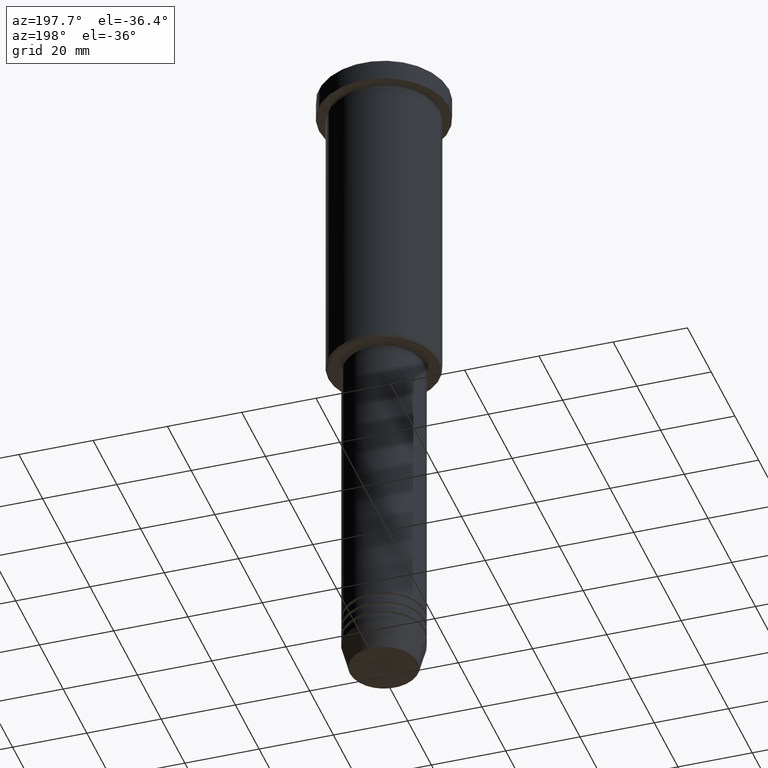
[diagram: clean part render]
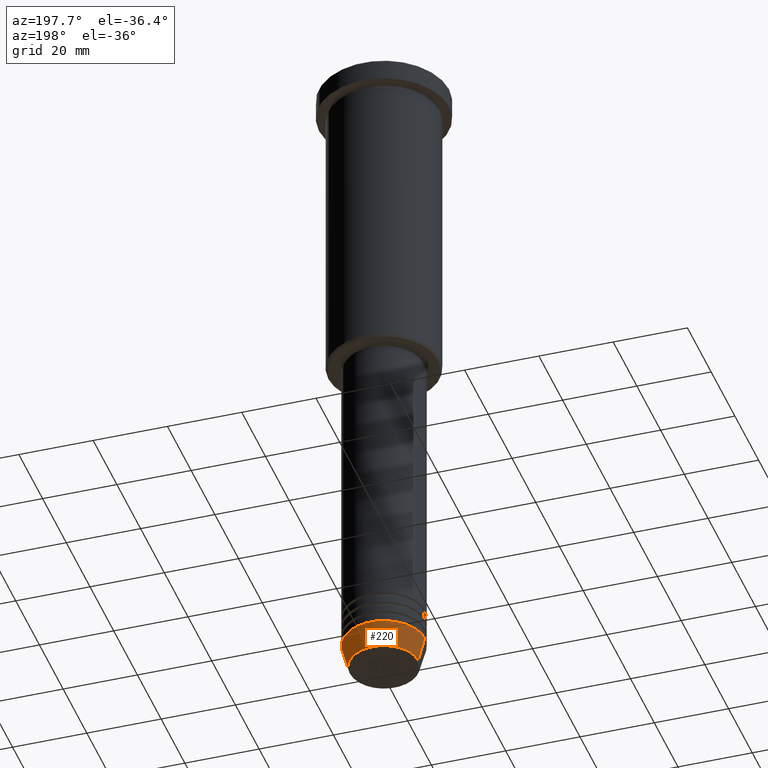
[diagram: same view with one face highlighted and labeled with its STEP entity id]
A machine part, auxiliary view. The second image highlights one B-rep face of the part: STEP entity #220.
In plain terms, the highlighted conical surface has half-angle 15 deg.
Its self-contained STEP definition (entity closure, byte-faithful):
#70 = CARTESIAN_POINT ( 'NONE',  ( 11.00000000000000000, 0.000000000000000000, -174.0000000000000284 ) ) ;
#129 = CARTESIAN_POINT ( 'NONE',  ( 0.000000000000000000, 0.000000000000000000, -174.0000000000000284 ) ) ;
#131 = VERTEX_POINT ( 'NONE', #298 ) ;
#151 = DIRECTION ( 'NONE',  ( 0.2588190451025213501, 0.000000000000000000, 0.9659258262890680902 ) ) ;
#212 = DIRECTION ( 'NONE',  ( 1.000000000000000000, 0.000000000000000000, 0.000000000000000000 ) ) ;
#220 = ADVANCED_FACE ( 'NONE', ( #577 ), #1107, .T. ) ;
#222 = DIRECTION ( 'NONE',  ( -0.000000000000000000, -0.000000000000000000, 1.000000000000000000 ) ) ;
#252 = EDGE_CURVE ( 'NONE', #635, #497, #792, .T. ) ;
#286 = CARTESIAN_POINT ( 'NONE',  ( 0.000000000000000000, 0.000000000000000000, -180.6294095225512422 ) ) ;
#298 = CARTESIAN_POINT ( 'NONE',  ( -11.00000000000000000, 1.347111479062088405E-15, -174.0000000000000284 ) ) ;
#299 = DIRECTION ( 'NONE',  ( -0.000000000000000000, -0.000000000000000000, 1.000000000000000000 ) ) ;
#308 = VECTOR ( 'NONE', #151, 1000.000000000000000 ) ;
#357 = LINE ( 'NONE', #729, #659 ) ;
#423 = ORIENTED_EDGE ( 'NONE', *, *, #511, .T. ) ;
#497 = VERTEX_POINT ( 'NONE', #918 ) ;
#511 = EDGE_CURVE ( 'NONE', #998, #131, #357, .T. ) ;
#516 = ORIENTED_EDGE ( 'NONE', *, *, #912, .T. ) ;
#552 = CARTESIAN_POINT ( 'NONE',  ( -9.223655072137194821, 1.238341722557647596E-15, -180.6294095225512422 ) ) ;
#577 = FACE_OUTER_BOUND ( 'NONE', #1119, .T. ) ;
#595 = AXIS2_PLACEMENT_3D ( 'NONE', #129, #222, #1042 ) ;
#601 = AXIS2_PLACEMENT_3D ( 'NONE', #1122, #299, #212 ) ;
#635 = VERTEX_POINT ( 'NONE', #763 ) ;
#659 = VECTOR ( 'NONE', #999, 1000.000000000000000 ) ;
#660 = CIRCLE ( 'NONE', #888, 9.223655072137194821 ) ;
#729 = CARTESIAN_POINT ( 'NONE',  ( -11.00000000000000000, 1.347111479062088405E-15, -174.0000000000000284 ) ) ;
#763 = CARTESIAN_POINT ( 'NONE',  ( 9.223655072137194821, 0.000000000000000000, -180.6294095225512422 ) ) ;
#792 = LINE ( 'NONE', #70, #308 ) ;
#842 = ORIENTED_EDGE ( 'NONE', *, *, #1036, .F. ) ;
#871 = CIRCLE ( 'NONE', #601, 11.00000000000000000 ) ;
#888 = AXIS2_PLACEMENT_3D ( 'NONE', #286, #905, #1065 ) ;
#905 = DIRECTION ( 'NONE',  ( -0.000000000000000000, -0.000000000000000000, 1.000000000000000000 ) ) ;
#912 = EDGE_CURVE ( 'NONE', #635, #998, #660, .T. ) ;
#918 = CARTESIAN_POINT ( 'NONE',  ( 11.00000000000000000, 0.000000000000000000, -174.0000000000000284 ) ) ;
#997 = ORIENTED_EDGE ( 'NONE', *, *, #252, .F. ) ;
#998 = VERTEX_POINT ( 'NONE', #552 ) ;
#999 = DIRECTION ( 'NONE',  ( -0.2588190451025213501, 3.169619151431772337E-17, 0.9659258262890680902 ) ) ;
#1036 = EDGE_CURVE ( 'NONE', #497, #131, #871, .T. ) ;
#1042 = DIRECTION ( 'NONE',  ( 1.000000000000000000, 0.000000000000000000, 0.000000000000000000 ) ) ;
#1065 = DIRECTION ( 'NONE',  ( 1.000000000000000000, 0.000000000000000000, 0.000000000000000000 ) ) ;
#1107 = CONICAL_SURFACE ( 'NONE', #595, 11.00000000000000000, 0.2617993877991500740 ) ;
#1119 = EDGE_LOOP ( 'NONE', ( #516, #423, #842, #997 ) ) ;
#1122 = CARTESIAN_POINT ( 'NONE',  ( 0.000000000000000000, 0.000000000000000000, -174.0000000000000284 ) ) ;